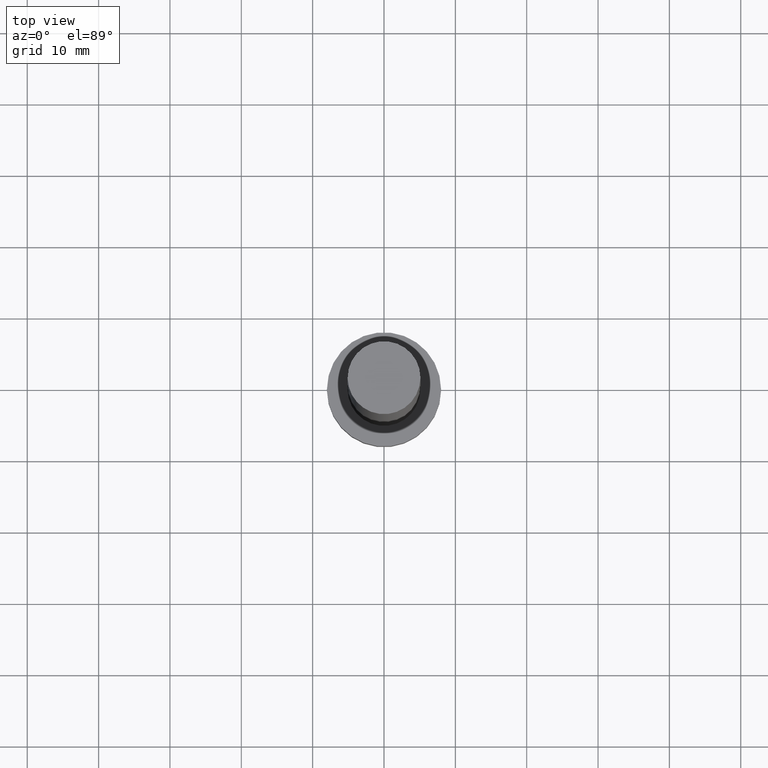
[diagram: clean part render]
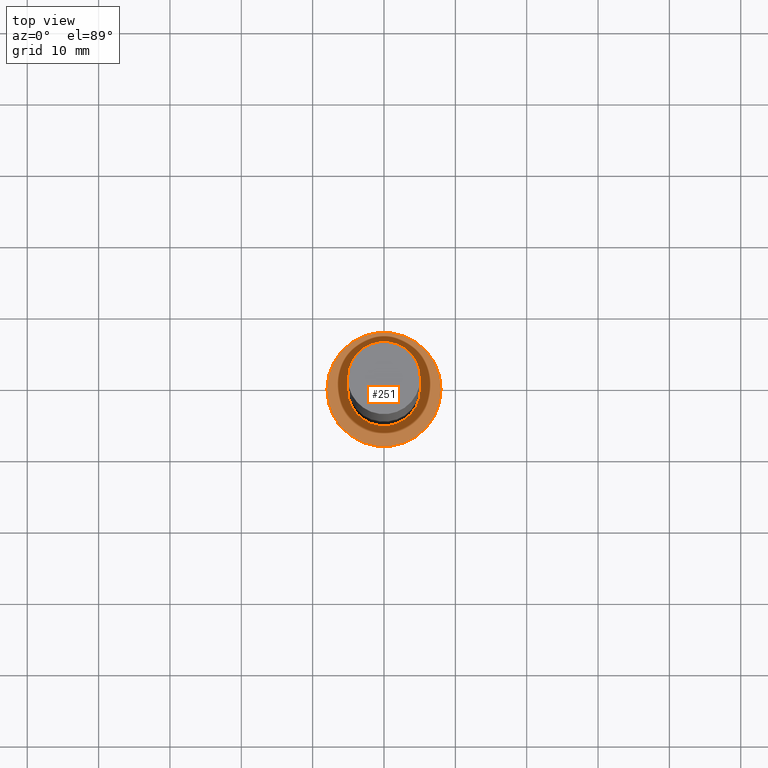
[diagram: same view with one face highlighted and labeled with its STEP entity id]
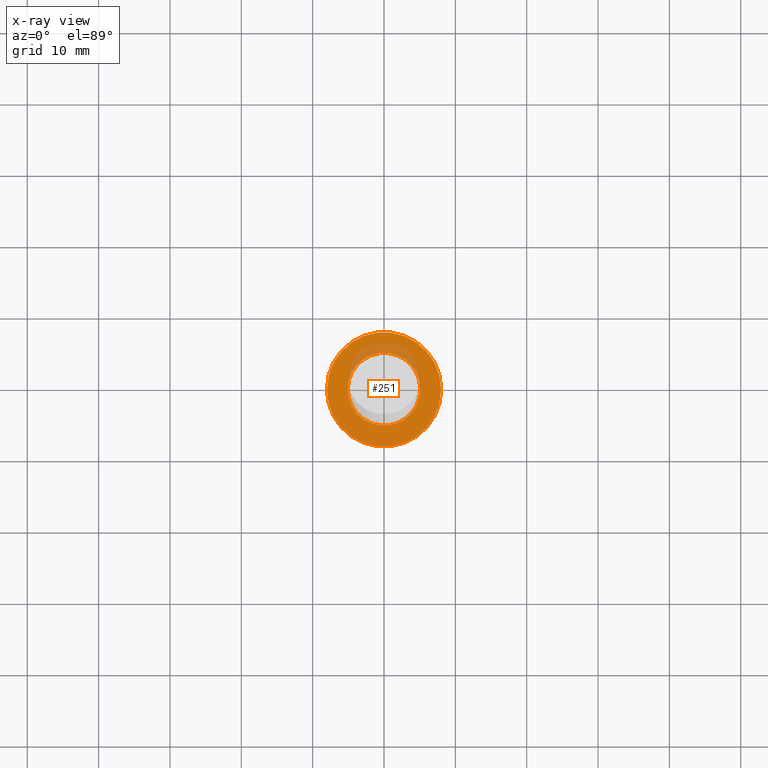
[diagram: x-ray of the same camera — body ghosted, the highlighted face saturated]
A machine part, top view. The second image highlights one B-rep face of the part: STEP entity #251.
The next image is the same camera in x-ray: the body ghosted, the highlighted face saturated — about 14% of this face is hidden behind the body in this view.
In plain terms, the highlighted planar face has unit normal (0, 0, 1).
Its self-contained STEP definition (entity closure, byte-faithful):
#3 = EDGE_LOOP ( 'NONE', ( #95, #223 ) ) ;
#9 = DIRECTION ( 'NONE',  ( 0.000000000000000000, 0.000000000000000000, 1.000000000000000000 ) ) ;
#15 = CARTESIAN_POINT ( 'NONE',  ( 0.000000000000000000, 0.000000000000000000, 6.500000000000000000 ) ) ;
#17 = CARTESIAN_POINT ( 'NONE',  ( 0.000000000000000000, 0.000000000000000000, 6.500000000000000000 ) ) ;
#19 = EDGE_LOOP ( 'NONE', ( #119, #21 ) ) ;
#21 = ORIENTED_EDGE ( 'NONE', *, *, #201, .T. ) ;
#34 = DIRECTION ( 'NONE',  ( 1.000000000000000000, 0.000000000000000000, 0.000000000000000000 ) ) ;
#55 = FACE_OUTER_BOUND ( 'NONE', #19, .T. ) ;
#56 = VERTEX_POINT ( 'NONE', #221 ) ;
#59 = CARTESIAN_POINT ( 'NONE',  ( 0.000000000000000000, 0.000000000000000000, 6.500000000000000000 ) ) ;
#68 = DIRECTION ( 'NONE',  ( 1.000000000000000000, 0.000000000000000000, 0.000000000000000000 ) ) ;
#71 = CARTESIAN_POINT ( 'NONE',  ( 0.000000000000000000, 0.000000000000000000, 6.500000000000000000 ) ) ;
#73 = EDGE_CURVE ( 'NONE', #167, #56, #155, .T. ) ;
#92 = AXIS2_PLACEMENT_3D ( 'NONE', #71, #160, #68 ) ;
#95 = ORIENTED_EDGE ( 'NONE', *, *, #73, .F. ) ;
#103 = VERTEX_POINT ( 'NONE', #227 ) ;
#109 = DIRECTION ( 'NONE',  ( 1.000000000000000000, 0.000000000000000000, 0.000000000000000000 ) ) ;
#113 = AXIS2_PLACEMENT_3D ( 'NONE', #59, #185, #209 ) ;
#119 = ORIENTED_EDGE ( 'NONE', *, *, #222, .T. ) ;
#132 = CIRCLE ( 'NONE', #254, 8.000000000000000000 ) ;
#134 = AXIS2_PLACEMENT_3D ( 'NONE', #17, #165, #109 ) ;
#144 = PLANE ( 'NONE',  #113 ) ;
#150 = VERTEX_POINT ( 'NONE', #248 ) ;
#152 = AXIS2_PLACEMENT_3D ( 'NONE', #158, #9, #250 ) ;
#155 = CIRCLE ( 'NONE', #134, 5.100000000000001421 ) ;
#156 = CIRCLE ( 'NONE', #92, 5.100000000000001421 ) ;
#158 = CARTESIAN_POINT ( 'NONE',  ( 0.000000000000000000, 0.000000000000000000, 6.500000000000000000 ) ) ;
#159 = DIRECTION ( 'NONE',  ( 0.000000000000000000, 0.000000000000000000, 1.000000000000000000 ) ) ;
#160 = DIRECTION ( 'NONE',  ( 0.000000000000000000, 0.000000000000000000, 1.000000000000000000 ) ) ;
#165 = DIRECTION ( 'NONE',  ( 0.000000000000000000, 0.000000000000000000, 1.000000000000000000 ) ) ;
#167 = VERTEX_POINT ( 'NONE', #181 ) ;
#169 = FACE_BOUND ( 'NONE', #3, .T. ) ;
#181 = CARTESIAN_POINT ( 'NONE',  ( -5.100000000000001421, 0.000000000000000000, 6.500000000000000000 ) ) ;
#185 = DIRECTION ( 'NONE',  ( 0.000000000000000000, 0.000000000000000000, 1.000000000000000000 ) ) ;
#201 = EDGE_CURVE ( 'NONE', #103, #150, #132, .T. ) ;
#206 = EDGE_CURVE ( 'NONE', #56, #167, #156, .T. ) ;
#209 = DIRECTION ( 'NONE',  ( 1.000000000000000000, 0.000000000000000000, -0.000000000000000000 ) ) ;
#221 = CARTESIAN_POINT ( 'NONE',  ( 5.100000000000001421, 6.245698675651502811E-16, 6.500000000000000000 ) ) ;
#222 = EDGE_CURVE ( 'NONE', #150, #103, #239, .T. ) ;
#223 = ORIENTED_EDGE ( 'NONE', *, *, #206, .F. ) ;
#227 = CARTESIAN_POINT ( 'NONE',  ( 8.000000000000000000, 9.797174393178823685E-16, 6.500000000000000000 ) ) ;
#239 = CIRCLE ( 'NONE', #152, 8.000000000000000000 ) ;
#248 = CARTESIAN_POINT ( 'NONE',  ( -8.000000000000000000, 0.000000000000000000, 6.500000000000000000 ) ) ;
#250 = DIRECTION ( 'NONE',  ( 1.000000000000000000, 0.000000000000000000, 0.000000000000000000 ) ) ;
#251 = ADVANCED_FACE ( 'NONE', ( #169, #55 ), #144, .T. ) ;
#254 = AXIS2_PLACEMENT_3D ( 'NONE', #15, #159, #34 ) ;